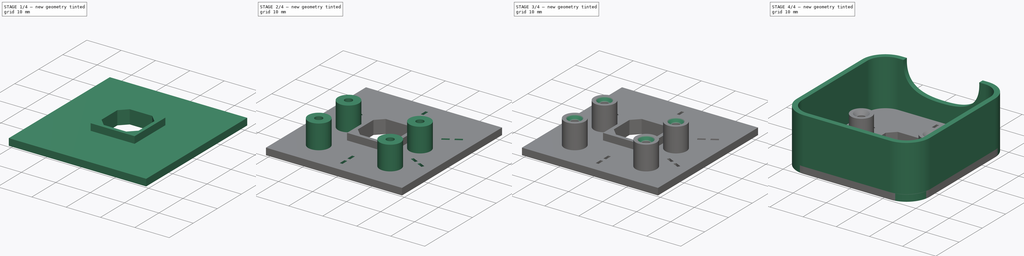
[diagram: build sequence overview — one tinted view per stage of 4, left to right]
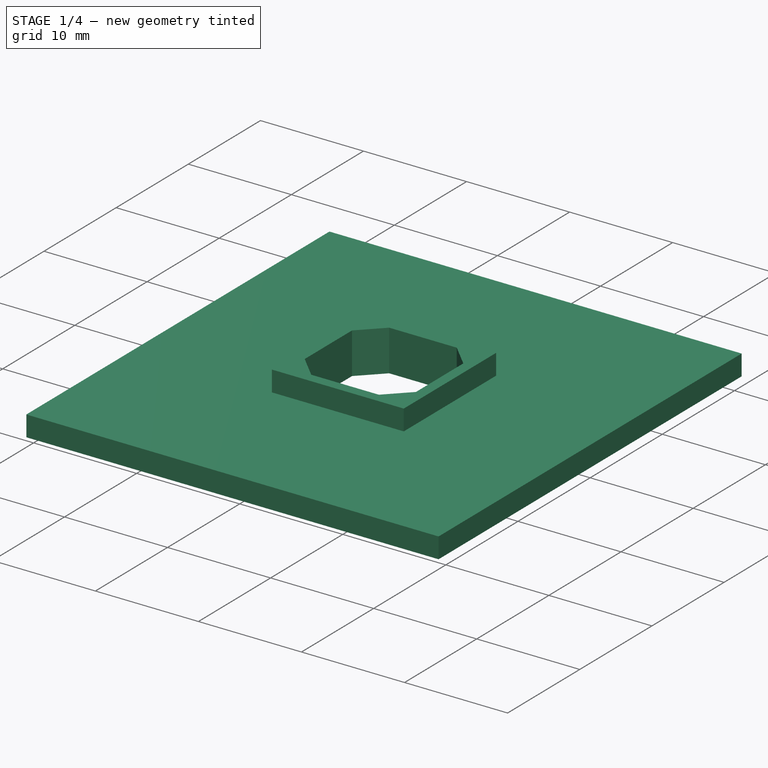
[diagram: stage 1 of 4 — iso view after this stage's code; geometry added in this stage tinted green]
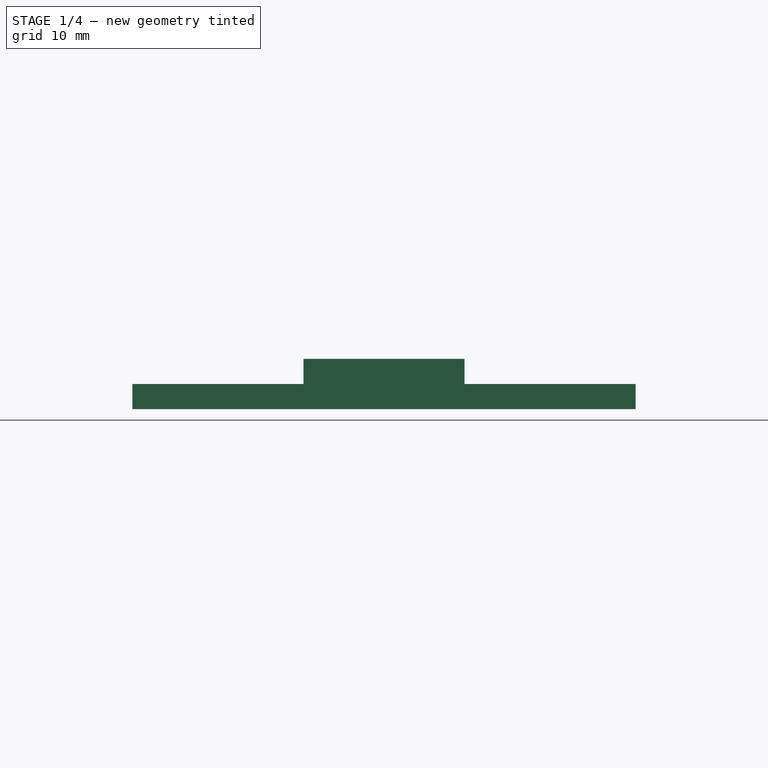
[diagram: stage 1 of 4 — front view after this stage's code; geometry added in this stage tinted green]
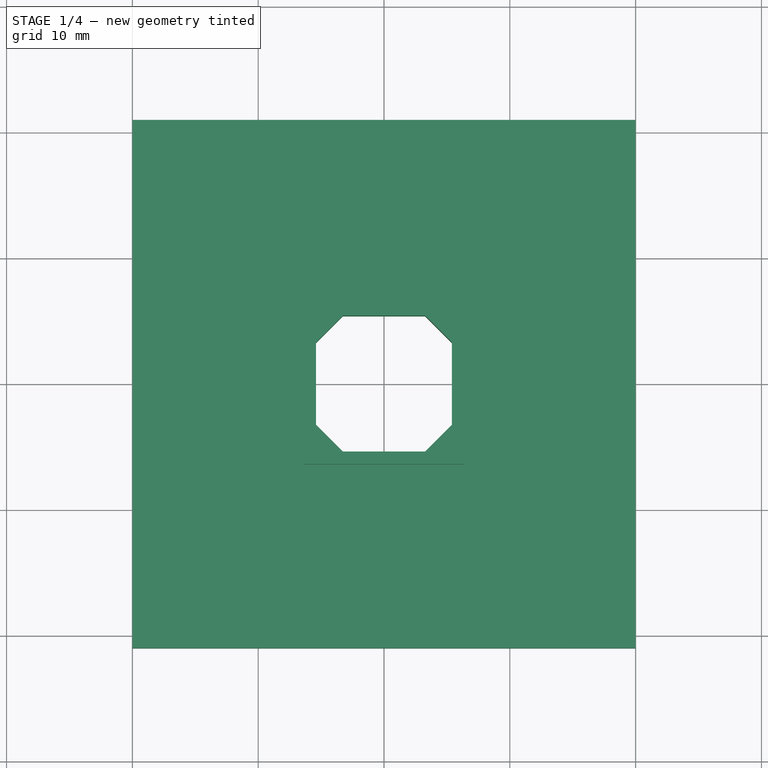
[diagram: stage 1 of 4 — top view after this stage's code; geometry added in this stage tinted green]
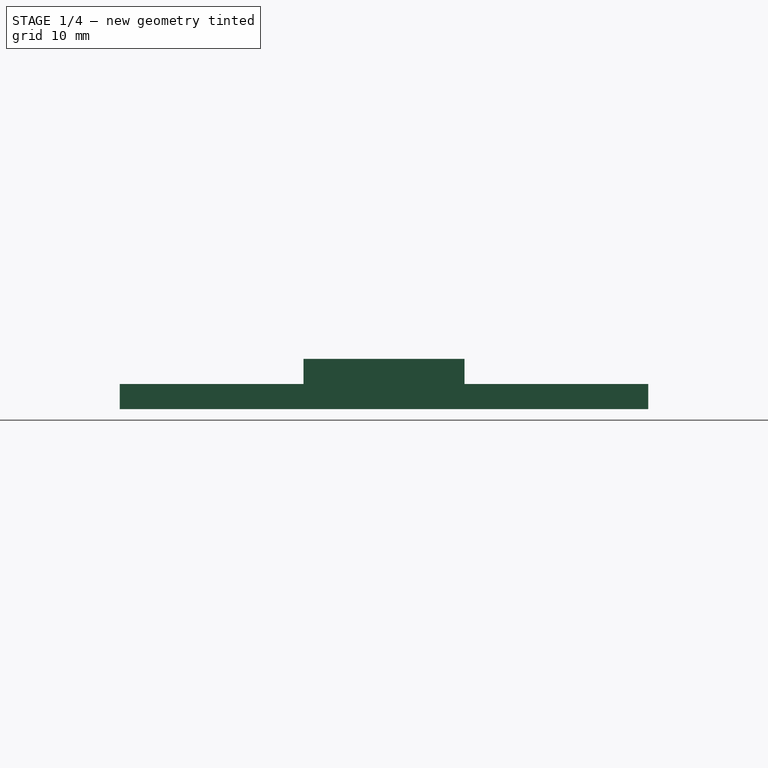
[diagram: stage 1 of 4 — right view after this stage's code; geometry added in this stage tinted green]
FCSTD DOCUMENT  (FreeCAD 2024.1R35694 (Git))
Label: probe-cam2
License: All rights reserved
LicenseURL: https://en.wikipedia.org/wiki/All_rights_reserved
objects: Sketcher::SketchObject×8, PartDesign::Pad×4, PartDesign::Pocket×4, PartDesign::Chamfer×2, Spreadsheet::Sheet×1, PartDesign::Fillet×1, PartDesign::Body×1
note: 31 computed .brp shape members not serialized (recipe doc carries the construction recipe); baked Part::Feature solids carry a one-line shape summary decoded from their .brp

FEATURE [Sketcher::SketchObject] Sketch
  FullyConstrained = true
  MapMode = 5
  Support = -> [XY_Plane]
  sketch-geometry (5):
    g0: LineSegment StartX=-5.4 StartY=5.4 StartZ=0 EndX=-5.4 EndY=-5.4 EndZ=0
    g1: LineSegment StartX=-5.4 StartY=-5.4 StartZ=0 EndX=5.4 EndY=-5.4 EndZ=0
    g2: LineSegment StartX=5.4 StartY=-5.4 StartZ=0 EndX=5.4 EndY=5.4 EndZ=0
    g3: LineSegment StartX=5.4 StartY=5.4 StartZ=0 EndX=-5.4 EndY=5.4 EndZ=0
    g4: GeomPoint X=0 Y=0 Z=0
  constraints (12):
    c: Coincident(g0,g1)
    c: Coincident(g1,g2)
    c: Coincident(g2,g3)
    c: Coincident(g3,g0)
    c: Vertical(g0)
    c: Vertical(g2)
    c: Horizontal(g1)
    c: Horizontal(g3)
    c: Symmetric(g2,g0,g4)
    c: Coincident(g4,g-1)
    c: Equal(g3,g0)
    c: DistanceX(g1,g1) = 10.8
FEATURE [Sketcher::SketchObject] Sketch001
  FullyConstrained = true
  MapMode = 5
  Support = -> [XY_Plane]
  sketch-geometry (8):
    g0: Circle CenterX=10.5 CenterY=-12.4 CenterZ=0 NormalX=0 NormalY=0 NormalZ=1 AngleXU=0 Radius=1.1
    g1: Circle CenterX=-10.5 CenterY=-12.4 CenterZ=0 NormalX=0 NormalY=0 NormalZ=1 AngleXU=0 Radius=1.1
    g2: Circle CenterX=10.5 CenterY=0.1 CenterZ=0 NormalX=0 NormalY=0 NormalZ=1 AngleXU=0 Radius=1.1
    g3: Circle CenterX=-10.5 CenterY=0.1 CenterZ=0 NormalX=0 NormalY=0 NormalZ=1 AngleXU=0 Radius=1.1
    g4: Circle CenterX=-10.5 CenterY=0.1 CenterZ=0 NormalX=0 NormalY=0 NormalZ=1 AngleXU=0 Radius=3.1
    g5: Circle CenterX=10.5 CenterY=0.1 CenterZ=0 NormalX=0 NormalY=0 NormalZ=1 AngleXU=0 Radius=3.1
    g6: Circle CenterX=10.5 CenterY=-12.4 CenterZ=0 NormalX=0 NormalY=0 NormalZ=1 AngleXU=0 Radius=3.1
    g7: Circle CenterX=-10.5 CenterY=-12.4 CenterZ=0 NormalX=0 NormalY=0 NormalZ=1 AngleXU=0 Radius=3.1
  constraints (19):
    c: Diameter(g0) = 2.2
    c: Equal(g0,g2)
    c: Equal(g2,g3)
    c: Equal(g3,g1)
    c: Vertical(g2,g0)
    c: Vertical(g1,g3)
    c: Horizontal(g1,g0)
    c: DistanceY(g-1,g2) = 0.1
    c: DistanceX(g1,g0) = 21
    c: DistanceY(g0,g2) = 12.5
    c: Symmetric(g3,g2,g-2)
    c: Coincident(g4,g3)
    c: Distance(g4,g3) = 2
    c: Coincident(g5,g2)
    c: Coincident(g6,g0)
    c: Coincident(g7,g1)
    c: Equal(g4,g7)
    c: Equal(g5,g4)
    c: Equal(g6,g5)
FEATURE [Spreadsheet::Sheet] Spreadsheet
  cells = C16='LED; C17='outer diameter; D17(led_outer_diameter)=5.8
FEATURE [Sketcher::SketchObject] Sketch002
  FullyConstrained = false
  MapMode = 5
  Support = -> [XY_Plane]
  expr: Constraints[0] = <<Spreadsheet>>.led_outer_diameter
  sketch-geometry (7):
    g0: Circle CenterX=0 CenterY=-15.3989 CenterZ=0 NormalX=0 NormalY=0 NormalZ=1 AngleXU=0 Radius=2.9
    g1: Circle CenterX=14.7692 CenterY=-7 CenterZ=0 NormalX=0 NormalY=0 NormalZ=1 AngleXU=0 Radius=2.9
    g2: Circle CenterX=-14 CenterY=8.6302 CenterZ=0 NormalX=0 NormalY=0 NormalZ=1 AngleXU=0 Radius=2.9
    g3: Circle CenterX=0 CenterY=15.3989 CenterZ=0 NormalX=0 NormalY=0 NormalZ=1 AngleXU=0 Radius=2.9
    g4: Circle CenterX=14 CenterY=8.6302 CenterZ=0 NormalX=0 NormalY=0 NormalZ=1 AngleXU=0 Radius=2.9
    g5: Circle CenterX=-14.7692 CenterY=-7 CenterZ=0 NormalX=0 NormalY=0 NormalZ=1 AngleXU=0 Radius=2.9
    g6: GeomPoint X=0 Y=0 Z=0
  constraints (11):
    c: Diameter(g0) = 5.8
    c: PointOnObject(g3,g-2)
    c: Equal(g0,g5)
    c: Equal(g0,g1)
    c: Equal(g0,g4)
    c: Equal(g0,g3)
    c: Equal(g0,g2)
    c: Symmetric(g5,g1,g-2)
    c: Symmetric(g2,g4,g-2)
    c: Symmetric(g0,g3,g-1)
    c: Coincident(g6,g-1)
FEATURE [Sketcher::SketchObject] Sketch003
  FullyConstrained = true
  MapMode = 5
  Support = -> [XY_Plane]
  sketch-geometry (5):
    g0: LineSegment StartX=20 StartY=-21 StartZ=0 EndX=20 EndY=21 EndZ=0
    g1: LineSegment StartX=20 StartY=21 StartZ=0 EndX=-20 EndY=21 EndZ=0
    g2: LineSegment StartX=-20 StartY=21 StartZ=0 EndX=-20 EndY=-21 EndZ=0
    g3: LineSegment StartX=-20 StartY=-21 StartZ=0 EndX=20 EndY=-21 EndZ=0
    g4: GeomPoint X=0 Y=0 Z=0
  constraints (12):
    c: Coincident(g0,g1)
    c: Coincident(g1,g2)
    c: Coincident(g2,g3)
    c: Coincident(g3,g0)
    c: Vertical(g0)
    c: Vertical(g2)
    c: Horizontal(g1)
    c: Horizontal(g3)
    c: Symmetric(g2,g0,g4)
    c: Coincident(g4,g-1)
    c: DistanceY(g2,g2) = 42
    c: DistanceX(g1,g1) = 40
FEATURE [Sketcher::SketchObject] Sketch004
  ExternalGeometry = -> [Sketch]
  FullyConstrained = true
  MapMode = 5
  Support = -> [XY_Plane]
  sketch-geometry (13):
    g0: LineSegment StartX=-5.4 StartY=3.27868 StartZ=0 EndX=-3.27868 EndY=5.4 EndZ=0
    g1: LineSegment StartX=3.27868 StartY=5.4 StartZ=0 EndX=5.4 EndY=3.27868 EndZ=0
    g2: LineSegment StartX=5.4 StartY=-3.27868 StartZ=0 EndX=3.27868 EndY=-5.4 EndZ=0
    g3: LineSegment StartX=-3.27868 StartY=-5.4 StartZ=0 EndX=-5.4 EndY=-3.27868 EndZ=0
    g4: LineSegment StartX=6.4 StartY=-6.4 StartZ=0 EndX=6.4 EndY=6.4 EndZ=0
    g5: LineSegment StartX=6.4 StartY=6.4 StartZ=0 EndX=-6.4 EndY=6.4 EndZ=0
    g6: LineSegment StartX=-6.4 StartY=6.4 StartZ=0 EndX=-6.4 EndY=-6.4 EndZ=0
    g7: LineSegment StartX=-6.4 StartY=-6.4 StartZ=0 EndX=6.4 EndY=-6.4 EndZ=0
    g8: GeomPoint X=0 Y=0 Z=0
    g9: LineSegment StartX=-3.27868 StartY=-5.4 StartZ=0 EndX=3.27868 EndY=-5.4 EndZ=0
    g10: LineSegment StartX=5.4 StartY=-3.27868 StartZ=0 EndX=5.4 EndY=3.27868 EndZ=0
    g11: LineSegment StartX=-3.27868 StartY=5.4 StartZ=0 EndX=3.27868 EndY=5.4 EndZ=0
    g12: LineSegment StartX=-5.4 StartY=-3.27868 StartZ=0 EndX=-5.4 EndY=3.27868 EndZ=0
  constraints (36):
    c: PointOnObject(g0,g-3)
    c: PointOnObject(g0,g-4)
    c: PointOnObject(g1,g-4)
    c: PointOnObject(g1,g-5)
    c: PointOnObject(g2,g-5)
    c: PointOnObject(g2,g-6)
    c: PointOnObject(g3,g-6)
    c: PointOnObject(g3,g-3)
    c: Angle(g0,g-2) = 0.785398
    c: Angle(g-2,g1) = 0.785398
    c: Angle(g2,g-2) = 0.785398
    c: Angle(g-2,g3) = 0.785398
    c: Distance(g3,g3) = 3
    c: Distance(g2,g2) = 3
    c: Distance(g1,g1) = 3
    c: Distance(g0,g0) = 3
    c: Coincident(g4,g5)
    c: Coincident(g5,g6)
    c: Coincident(g6,g7)
    c: Coincident(g7,g4)
    c: Vertical(g4)
    c: Vertical(g6)
    c: Horizontal(g5)
    c: Horizontal(g7)
    c: Symmetric(g6,g4,g8)
    c: Coincident(g8,g-1)
    c: Equal(g6,g5)
    c: Distance(g-3,g6) = 1
    c: Coincident(g9,g3)
    c: Coincident(g9,g2)
    c: Coincident(g10,g2)
    c: Coincident(g10,g1)
    c: Coincident(g11,g0)
    c: Coincident(g11,g1)
    c: Coincident(g12,g3)
    c: Coincident(g12,g0)
FEATURE [PartDesign::Pad] Pad
  Direction = (0,0,1)
  Length = 2
  Length2 = 10
  Profile = -> Sketch003
  ReferenceAxis = -> Sketch003 [N_Axis]
  Refine = true
  Type = 0
FEATURE [PartDesign::Pocket] Pocket
  BaseFeature = -> Pad
  Direction = (0,0,-1)
  Length = 5
  Length2 = 5
  Profile = -> Sketch
  ReferenceAxis = -> Sketch [N_Axis]
  Refine = true
  Reversed = true
  Type = 2
FEATURE [PartDesign::Pad] Pad001
  BaseFeature = -> Pocket
  Direction = (0,0,1)
  Length = 4
  Length2 = 10
  Profile = -> Sketch004
  ReferenceAxis = -> Sketch004 [N_Axis]
  Refine = true
  Type = 0
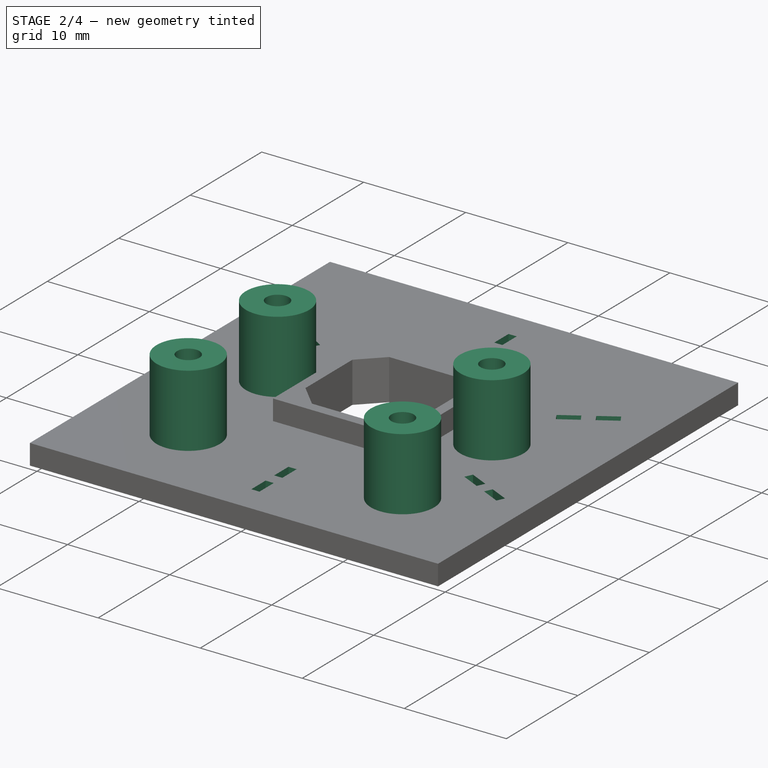
[diagram: stage 2 of 4 — iso view after this stage's code; geometry added in this stage tinted green]
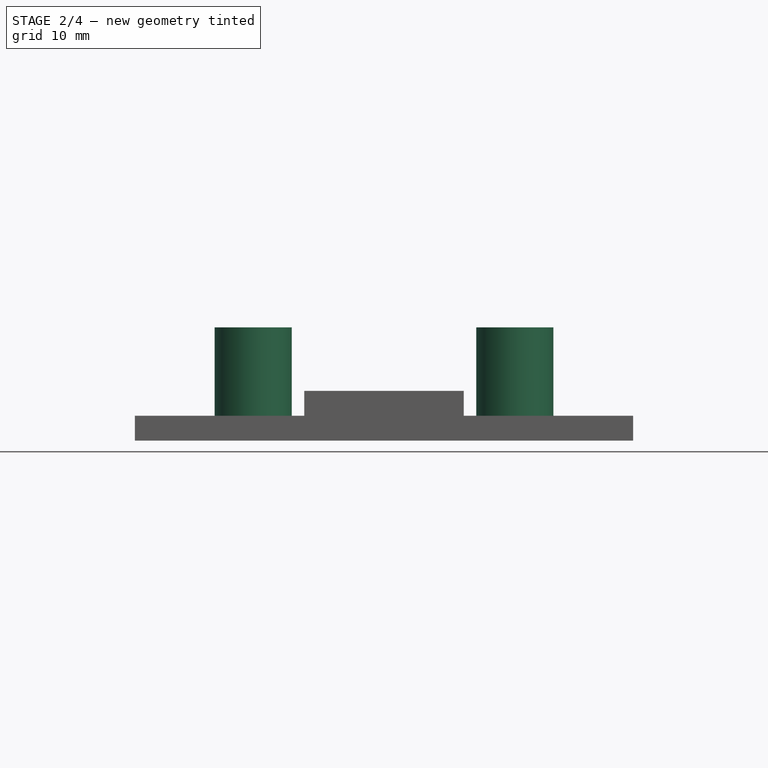
[diagram: stage 2 of 4 — front view after this stage's code; geometry added in this stage tinted green]
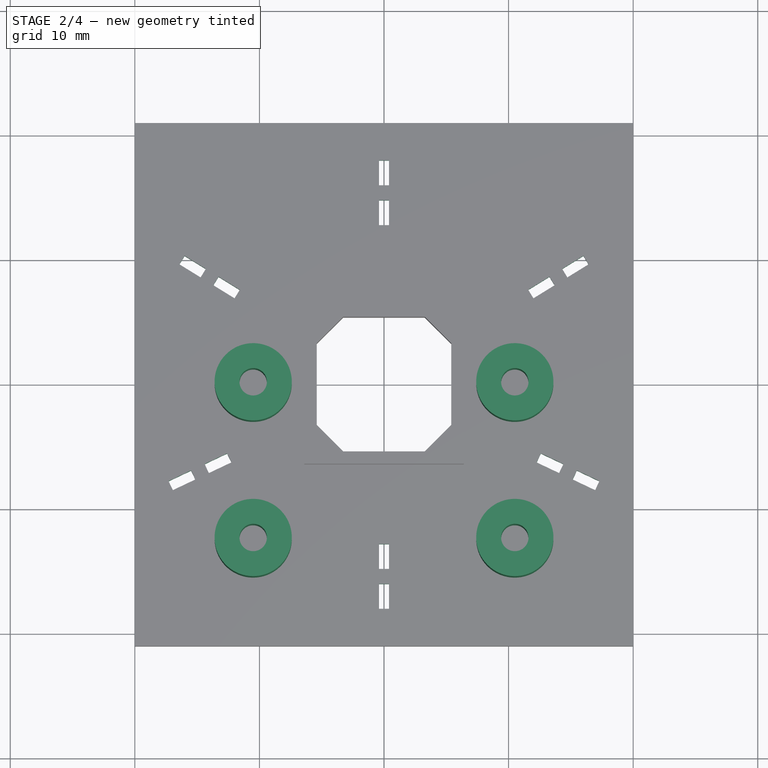
[diagram: stage 2 of 4 — top view after this stage's code; geometry added in this stage tinted green]
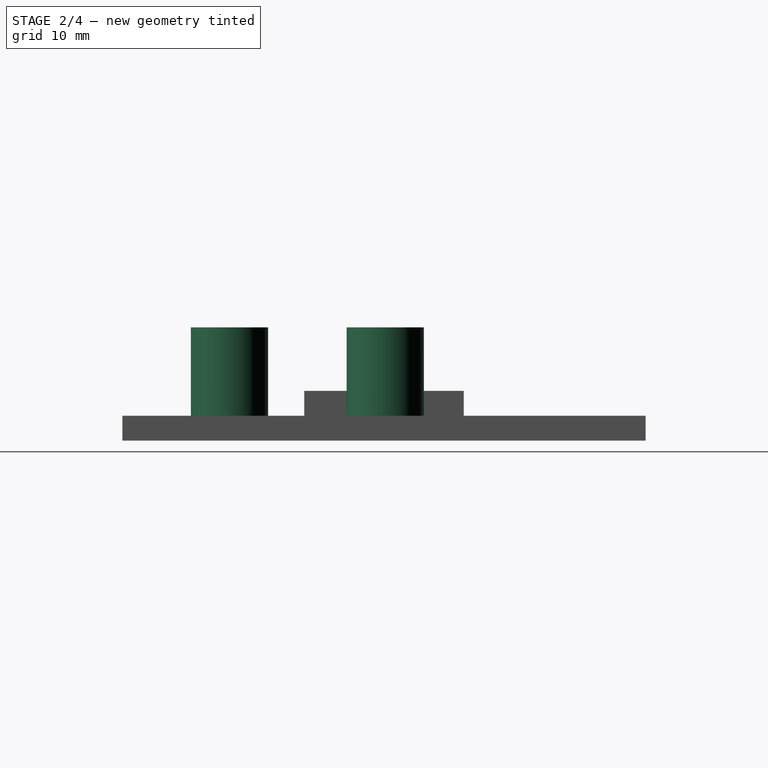
[diagram: stage 2 of 4 — right view after this stage's code; geometry added in this stage tinted green]
FEATURE [Sketcher::SketchObject] Sketch005
  ExternalGeometry = -> [Sketch002]
  FullyConstrained = true
  MapMode = 5
  Support = -> [XY_Plane]
  sketch-geometry (54):
    g0: LineSegment StartX=0 StartY=0 StartZ=0 EndX=-14 EndY=8.6302 EndZ=0
    g1: LineSegment StartX=0 StartY=0 StartZ=0 EndX=0 EndY=15.3989 EndZ=0
    g2: LineSegment StartX=0 StartY=0 StartZ=0 EndX=14 EndY=8.6302 EndZ=0
    g3: LineSegment StartX=0 StartY=0 StartZ=0 EndX=14.7692 EndY=-7 EndZ=0
    g4: LineSegment StartX=0 StartY=-15.3989 StartZ=0 EndX=0 EndY=0 EndZ=0
    g5: LineSegment StartX=-14.7692 StartY=-7 StartZ=0 EndX=0 EndY=0 EndZ=0
    g6: LineSegment StartX=-0.4 StartY=17.9989 StartZ=0 EndX=-0.4 EndY=15.9989 EndZ=0
    g7: LineSegment StartX=-0.4 StartY=15.9989 StartZ=0 EndX=0.4 EndY=15.9989 EndZ=0
    g8: LineSegment StartX=0.4 StartY=15.9989 StartZ=0 EndX=0.4 EndY=17.9989 EndZ=0
    g9: LineSegment StartX=0.4 StartY=17.9989 StartZ=0 EndX=-0.4 EndY=17.9989 EndZ=0
    g10: LineSegment StartX=0.4 StartY=14.7989 StartZ=0 EndX=-0.4 EndY=14.7989 EndZ=0
    g11: LineSegment StartX=0.4 StartY=12.7989 StartZ=0 EndX=0.4 EndY=14.7989 EndZ=0
    g12: LineSegment StartX=-0.4 StartY=14.7989 StartZ=0 EndX=-0.4 EndY=12.7989 EndZ=0
    g13: LineSegment StartX=-0.4 StartY=12.7989 StartZ=0 EndX=0.4 EndY=12.7989 EndZ=0
    g14: LineSegment StartX=16.0034 StartY=10.335 StartZ=0 EndX=14.3009 EndY=9.28555 EndZ=0
    g15: LineSegment StartX=14.3009 StartY=9.28555 StartZ=0 EndX=14.7207 EndY=8.60454 EndZ=0
    g16: LineSegment StartX=14.7207 StartY=8.60454 StartZ=0 EndX=16.4232 EndY=9.65404 EndZ=0
    g17: LineSegment StartX=16.4232 StartY=9.65404 StartZ=0 EndX=16.0034 EndY=10.335 EndZ=0
    g18: LineSegment StartX=13.6991 StartY=7.97484 StartZ=0 EndX=13.2793 EndY=8.65585 EndZ=0
    g19: LineSegment StartX=11.9966 StartY=6.92534 StartZ=0 EndX=13.6991 EndY=7.97484 EndZ=0
    g20: LineSegment StartX=13.2793 StartY=8.65585 StartZ=0 EndX=11.5768 EndY=7.60635 EndZ=0
    g21: LineSegment StartX=11.5768 StartY=7.60635 StartZ=0 EndX=11.9966 EndY=6.92534 EndZ=0
    g22: LineSegment StartX=17.29 StartY=-7.7521 StartZ=0 EndX=15.4827 EndY=-6.89552 EndZ=0
    g23: LineSegment StartX=15.4827 StartY=-6.89552 StartZ=0 EndX=15.14 EndY=-7.61843 EndZ=0
    g24: LineSegment StartX=15.14 StartY=-7.61843 StartZ=0 EndX=16.9473 EndY=-8.47501 EndZ=0
    g25: LineSegment StartX=16.9473 StartY=-8.47501 StartZ=0 EndX=17.29 EndY=-7.7521 EndZ=0
    g26: LineSegment StartX=14.0557 StartY=-7.10448 StartZ=0 EndX=14.3983 EndY=-6.38157 EndZ=0
    g27: LineSegment StartX=12.2484 StartY=-6.2479 StartZ=0 EndX=14.0557 EndY=-7.10448 EndZ=0
    g28: LineSegment StartX=14.3983 StartY=-6.38157 StartZ=0 EndX=12.591 EndY=-5.52499 EndZ=0
    g29: LineSegment StartX=12.591 StartY=-5.52499 StartZ=0 EndX=12.2484 EndY=-6.2479 EndZ=0
    g30: LineSegment StartX=0.4 StartY=-17.9989 StartZ=0 EndX=0.4 EndY=-15.9989 EndZ=0
    g31: LineSegment StartX=0.4 StartY=-15.9989 StartZ=0 EndX=-0.4 EndY=-15.9989 EndZ=0
    g32: LineSegment StartX=-0.4 StartY=-15.9989 StartZ=0 EndX=-0.4 EndY=-17.9989 EndZ=0
    g33: LineSegment StartX=-0.4 StartY=-17.9989 StartZ=0 EndX=0.4 EndY=-17.9989 EndZ=0
    g34: LineSegment StartX=-0.4 StartY=-14.7989 StartZ=0 EndX=0.4 EndY=-14.7989 EndZ=0
    g35: LineSegment StartX=-0.4 StartY=-12.7989 StartZ=0 EndX=-0.4 EndY=-14.7989 EndZ=0
    g36: LineSegment StartX=0.4 StartY=-14.7989 StartZ=0 EndX=0.4 EndY=-12.7989 EndZ=0
    g37: LineSegment StartX=0.4 StartY=-12.7989 StartZ=0 EndX=-0.4 EndY=-12.7989 EndZ=0
    g38: LineSegment StartX=-16.9473 StartY=-8.47501 StartZ=0 EndX=-15.14 EndY=-7.61843 EndZ=0
    g39: LineSegment StartX=-15.14 StartY=-7.61843 StartZ=0 EndX=-15.4827 EndY=-6.89552 EndZ=0
    g40: LineSegment StartX=-15.4827 StartY=-6.89552 StartZ=0 EndX=-17.29 EndY=-7.7521 EndZ=0
    g41: LineSegment StartX=-17.29 StartY=-7.7521 StartZ=0 EndX=-16.9473 EndY=-8.47501 EndZ=0
    g42: LineSegment StartX=-14.3983 StartY=-6.38157 StartZ=0 EndX=-14.0557 EndY=-7.10448 EndZ=0
    g43: LineSegment StartX=-12.591 StartY=-5.52499 StartZ=0 EndX=-14.3983 EndY=-6.38157 EndZ=0
    g44: LineSegment StartX=-14.0557 StartY=-7.10448 StartZ=0 EndX=-12.2484 EndY=-6.2479 EndZ=0
    g45: LineSegment StartX=-12.2484 StartY=-6.2479 StartZ=0 EndX=-12.591 EndY=-5.52499 EndZ=0
    g46: LineSegment StartX=-16.4232 StartY=9.65404 StartZ=0 EndX=-14.7207 EndY=8.60454 EndZ=0
    g47: LineSegment StartX=-14.7207 StartY=8.60454 StartZ=0 EndX=-14.3009 EndY=9.28555 EndZ=0
    g48: LineSegment StartX=-14.3009 StartY=9.28555 StartZ=0 EndX=-16.0034 EndY=10.335 EndZ=0
    g49: LineSegment StartX=-16.0034 StartY=10.335 StartZ=0 EndX=-16.4232 EndY=9.65404 EndZ=0
    g50: LineSegment StartX=-13.2793 StartY=8.65585 StartZ=0 EndX=-13.6991 EndY=7.97484 EndZ=0
    g51: LineSegment StartX=-11.5768 StartY=7.60635 StartZ=0 EndX=-13.2793 EndY=8.65585 EndZ=0
    g52: LineSegment StartX=-13.6991 StartY=7.97484 StartZ=0 EndX=-11.9966 EndY=6.92534 EndZ=0
    g53: LineSegment StartX=-11.9966 StartY=6.92534 StartZ=0 EndX=-11.5768 EndY=7.60635 EndZ=0
  constraints (143):
    c: Coincident(g0,g-1)
    c: Coincident(g0,g-3)
    c: Coincident(g1,g0)
    c: Coincident(g1,g-4)
    c: Coincident(g2,g0)
    c: Coincident(g2,g-5)
    c: Coincident(g3,g0)
    c: Coincident(g3,g-6)
    c: Coincident(g4,g-7)
    c: Coincident(g4,g0)
    c: Coincident(g5,g-8)
    c: Coincident(g5,g0)
    c: Coincident(g6,g7)
    c: Coincident(g7,g8)
    c: Coincident(g8,g9)
    c: Coincident(g9,g6)
    c: Symmetric(g6,g7,g-2)
    c: DistanceX(g9,g9) = 0.8
    c: Equal(g6,g8)
    c: Perpendicular(g9,g8)
    c: Perpendicular(g6,g9)
    c: DistanceY(g8,g8) = 2
    c: Coincident(g11,g10)
    c: Coincident(g10,g12)
    c: Coincident(g12,g13)
    c: Coincident(g13,g11)
    c: Equal(g11,g12)
    c: Perpendicular(g13,g12)
    c: Perpendicular(g11,g13)
    c: Coincident(g14,g15)
    c: Coincident(g22,g23)
    c: Coincident(g30,g31)
    c: Coincident(g38,g39)
    c: Coincident(g46,g47)
    c: Coincident(g15,g16)
    c: Coincident(g23,g24)
    c: Coincident(g31,g32)
    c: Coincident(g39,g40)
    c: Coincident(g47,g48)
    c: Coincident(g16,g17)
    c: Coincident(g24,g25)
    c: Coincident(g32,g33)
    c: Coincident(g40,g41)
    c: Coincident(g48,g49)
    c: Coincident(g17,g14)
    c: Coincident(g25,g22)
    c: Coincident(g33,g30)
    c: Coincident(g41,g38)
    c: Coincident(g49,g46)
    c: Equal(g9,g17)
    c: Equal(g9,g25)
    c: Equal(g9,g33)
    c: Equal(g9,g41)
    c: Equal(g9,g49)
    c: Equal(g14,g16)
    c: Equal(g22,g24)
    c: Equal(g30,g32)
    c: Equal(g38,g40)
    c: Equal(g46,g48)
    c: Perpendicular(g17,g16)
    c: Perpendicular(g25,g24)
    c: Perpendicular(g33,g32)
    c: Perpendicular(g41,g40)
    c: Perpendicular(g49,g48)
    c: Perpendicular(g14,g17)
    c: Perpendicular(g22,g25)
    c: Perpendicular(g30,g33)
    c: Perpendicular(g38,g41)
    c: Perpendicular(g46,g49)
    c: Equal(g8,g16)
    c: Equal(g8,g24)
    c: Equal(g8,g32)
    c: Equal(g8,g40)
    c: Equal(g8,g48)
    c: Coincident(g19,g18)
    c: Coincident(g27,g26)
    c: Coincident(g35,g34)
    c: Coincident(g43,g42)
    c: Coincident(g51,g50)
    c: Coincident(g18,g20)
    c: Coincident(g26,g28)
    c: Coincident(g34,g36)
    c: Coincident(g42,g44)
    c: Coincident(g50,g52)
    c: Coincident(g20,g21)
    c: Coincident(g28,g29)
    c: Coincident(g36,g37)
    c: Coincident(g44,g45)
    c: Coincident(g52,g53)
    c: Coincident(g21,g19)
    c: Coincident(g29,g27)
    c: Coincident(g37,g35)
    c: Coincident(g45,g43)
    c: Coincident(g53,g51)
    c: Equal(g19,g20)
    c: Equal(g27,g28)
    c: Equal(g35,g36)
    c: Equal(g43,g44)
    c: Equal(g51,g52)
    c: Perpendicular(g21,g20)
    c: Perpendicular(g29,g28)
    c: Perpendicular(g37,g36)
    c: Perpendicular(g45,g44)
    c: Perpendicular(g53,g52)
    c: Perpendicular(g19,g21)
    c: Perpendicular(g27,g29)
    c: Perpendicular(g35,g37)
    c: Perpendicular(g43,g45)
    c: Perpendicular(g51,g53)
    c: Distance(g1,g7) = 0.6
    c: Symmetric(g10,g7,g1)
    c: Equal(g19,g16)
    c: Parallel(g2,g19)
    c: Equal(g18,g15)
    c: Symmetric(g14,g15,g2)
    c: Symmetric(g18,g15,g2)
    c: Distance(g2,g15) = 0.6
    c: Parallel(g12,g1)
    c: Equal(g11,g8)
    c: Equal(g10,g7)
    c: Parallel(g28,g3)
    c: Equal(g28,g22)
    c: Equal(g23,g26)
    c: Distance(g3,g23) = 0.6
    c: Symmetric(g23,g22,g3)
    c: Symmetric(g22,g26,g3)
    c: Equal(g48,g51)
    c: Equal(g50,g47)
    c: Parallel(g0,g51)
    c: Distance(g0,g47) = 0.6
    c: Symmetric(g46,g47,g0)
    c: Symmetric(g50,g47,g0)
    c: Equal(g43,g40)
    c: Symmetric(g39,g38,g5)
    c: Symmetric(g42,g42,g5)
    c: Distance(g5,g39) = 0.6
    c: Symmetric(g42,g39,g5)
    c: Equal(g34,g31)
    c: Equal(g32,g35)
    c: Parallel(g35,g32)
    c: Symmetric(g31,g30,g-2)
    c: Symmetric(g31,g34,g4)
    c: Distance(g4,g31) = 0.6
FEATURE [PartDesign::Pad] Pad002
  BaseFeature = -> Pad001
  Direction = (0,0,1)
  Length = 9.1
  Length2 = 10
  Profile = -> Sketch001
  ReferenceAxis = -> Sketch001 [N_Axis]
  Refine = true
  Type = 0
FEATURE [PartDesign::Pocket] Pocket001
  BaseFeature = -> Pad002
  Direction = (0,0,-1)
  Length = 0
  Length2 = 5
  Profile = -> Sketch005
  ReferenceAxis = -> Sketch005 [N_Axis]
  Refine = true
  Type = 3
  UpToFace = -> Pad002 [Face4]
FEATURE [PartDesign::Pocket] Pocket002
  BaseFeature = -> Pocket001
  Direction = (0,0,-1)
  Length = 0.2
  Length2 = 5
  Profile = -> Sketch002
  ReferenceAxis = -> Sketch002 [N_Axis]
  Refine = true
  Reversed = true
  Type = 0
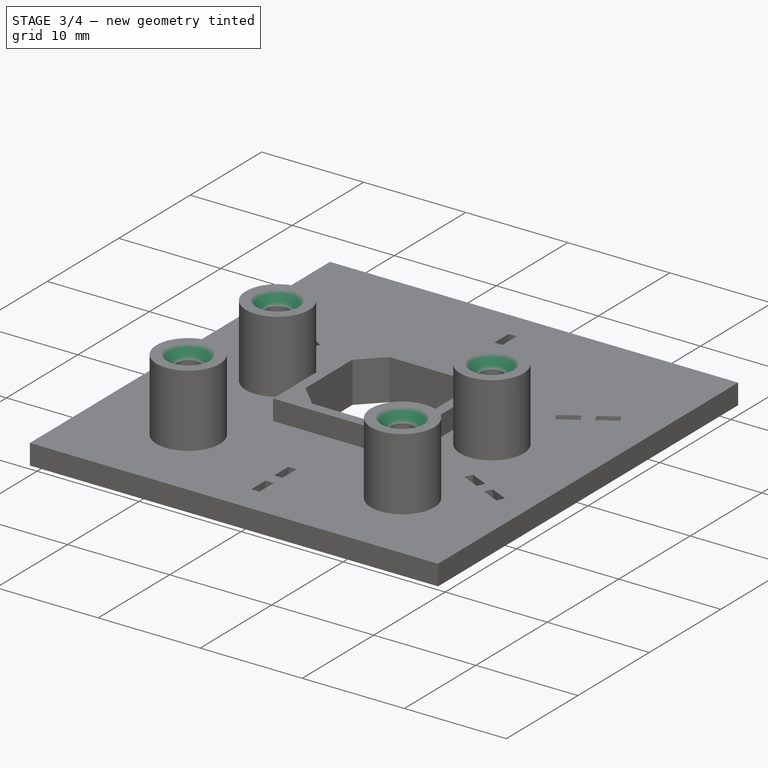
[diagram: stage 3 of 4 — iso view after this stage's code; geometry added in this stage tinted green]
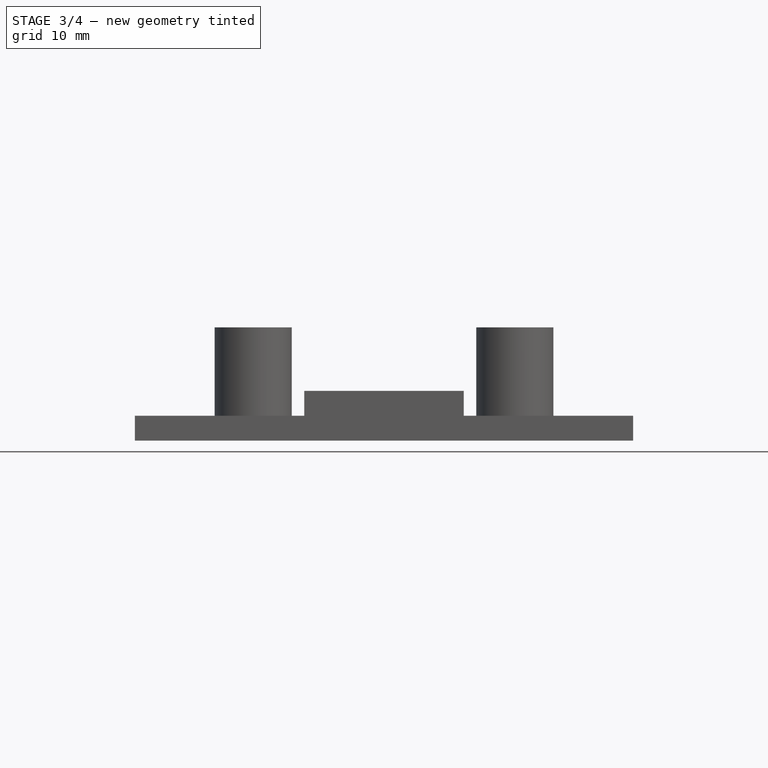
[diagram: stage 3 of 4 — front view after this stage's code; geometry added in this stage tinted green]
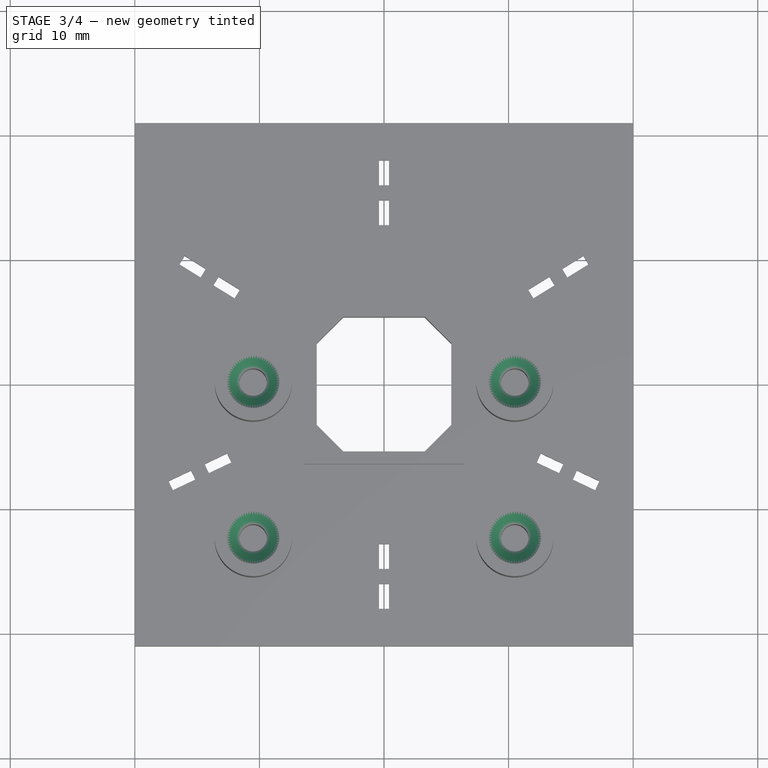
[diagram: stage 3 of 4 — top view after this stage's code; geometry added in this stage tinted green]
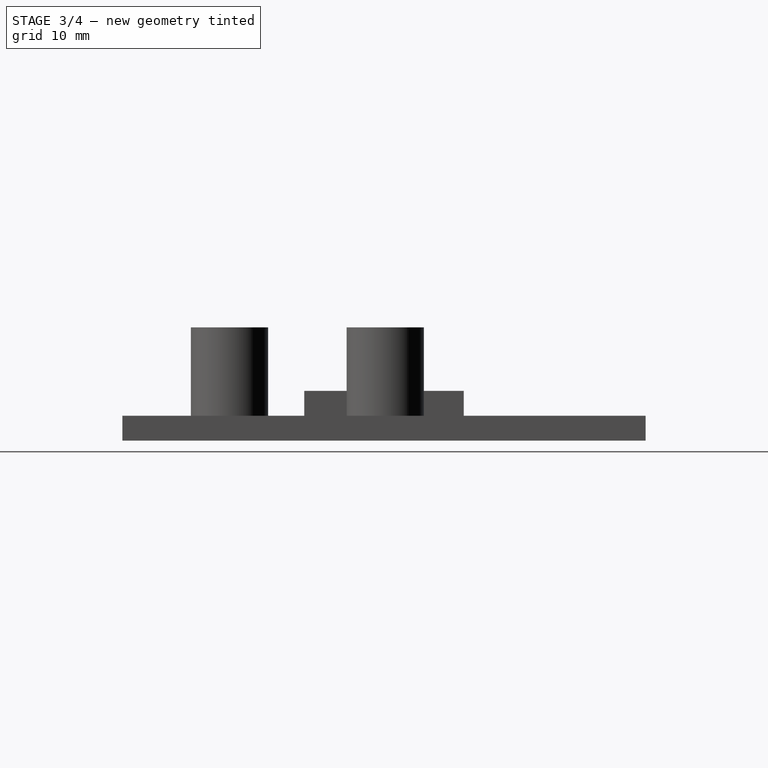
[diagram: stage 3 of 4 — right view after this stage's code; geometry added in this stage tinted green]
FEATURE [PartDesign::Chamfer] Chamfer
  Angle = 45
  Base = -> Pocket002 [Edge13,Edge12,Edge14,Edge24,Edge25,Edge15]
  BaseFeature = -> Pocket002
  ChamferType = 0
  FlipDirection = false
  Refine = true
  Size = 0.19
  Size2 = 1
  SupportTransform = false
  UseAllEdges = false
FEATURE [PartDesign::Chamfer] Chamfer001
  Angle = 45
  Base = -> Chamfer [Edge238,Edge236,Edge235,Edge237]
  BaseFeature = -> Chamfer
  ChamferType = 0
  FlipDirection = false
  Refine = true
  Size = 1
  Size2 = 1
  SupportTransform = false
  UseAllEdges = false
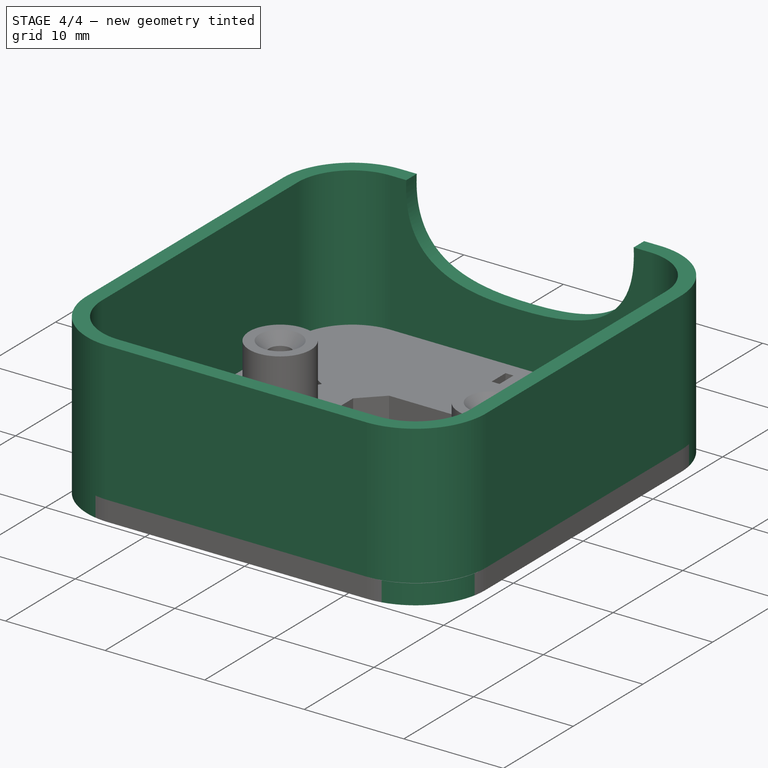
[diagram: stage 4 of 4 — iso view after this stage's code; geometry added in this stage tinted green]
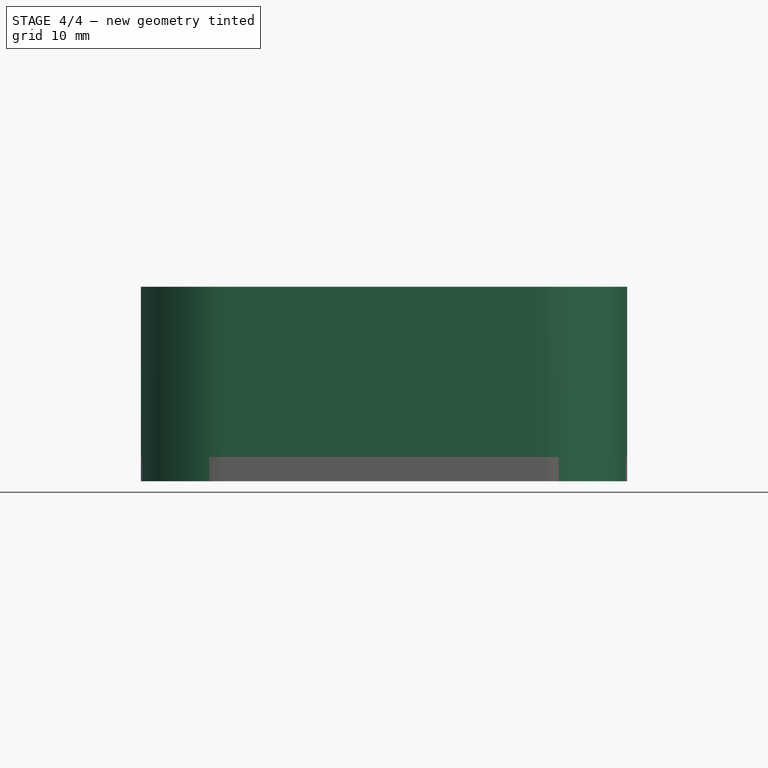
[diagram: stage 4 of 4 — front view after this stage's code; geometry added in this stage tinted green]
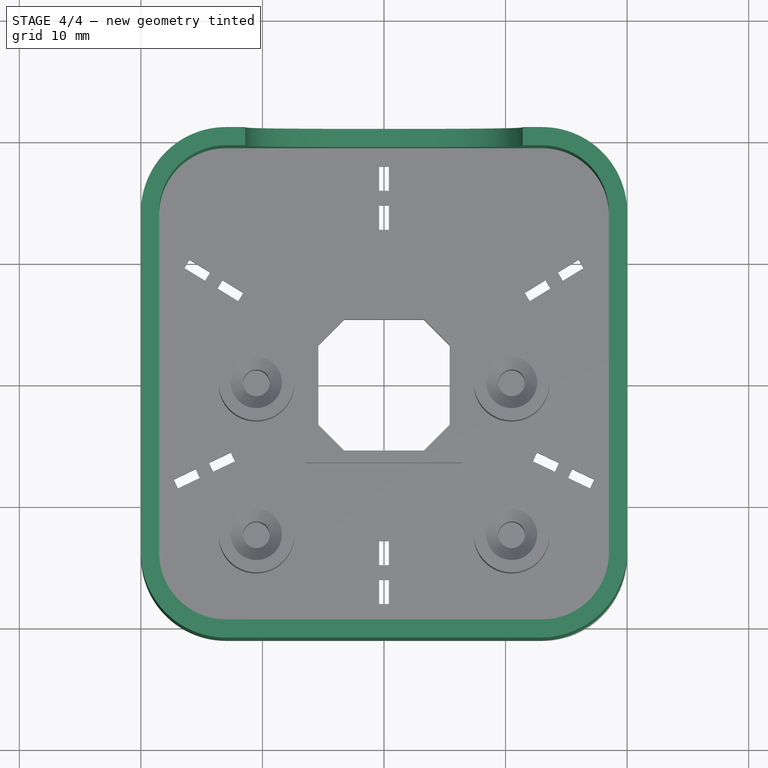
[diagram: stage 4 of 4 — top view after this stage's code; geometry added in this stage tinted green]
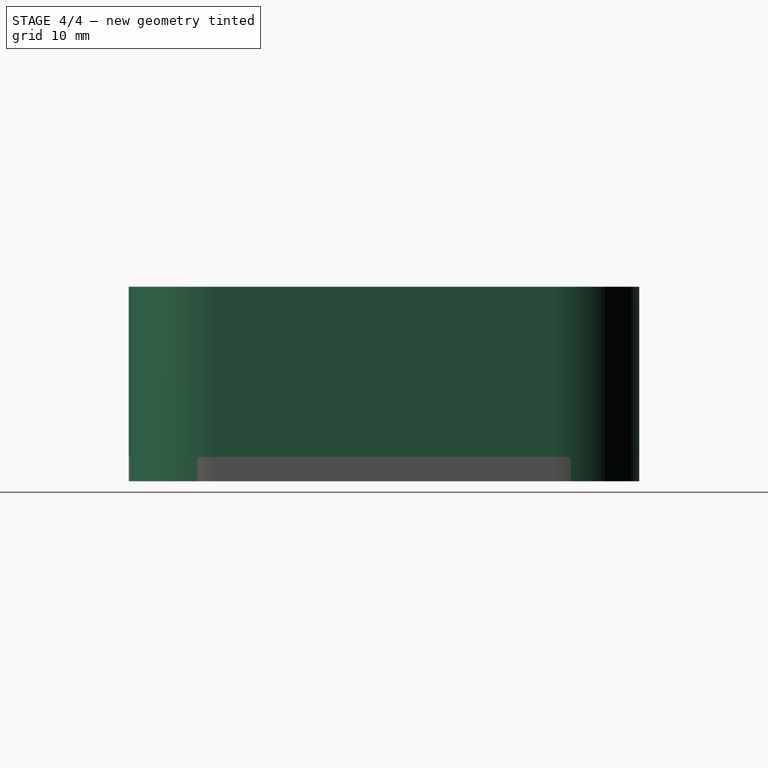
[diagram: stage 4 of 4 — right view after this stage's code; geometry added in this stage tinted green]
FEATURE [PartDesign::Fillet] Fillet
  Base = -> Chamfer001 [Edge71,Edge68,Edge73,Edge69]
  BaseFeature = -> Chamfer001
  Radius = 7
  Refine = true
  SupportTransform = false
  UseAllEdges = false
FEATURE [Sketcher::SketchObject] Sketch006
  ExternalGeometry = -> [Fillet]
  FullyConstrained = false
  MapMode = 5
  Placement = pos=(0,0,2) rot=(0,0,1;0rad)
  Support = -> [Fillet]
  sketch-geometry (18):
    g0: LineSegment StartX=-18.5 StartY=14 StartZ=0 EndX=-18.5 EndY=-13.9998 EndZ=0
    g1: LineSegment StartX=-13.0002 StartY=-19.5 StartZ=0 EndX=13 EndY=-19.5 EndZ=0
    g2: LineSegment StartX=18.5 StartY=-14 StartZ=0 EndX=18.5 EndY=14 EndZ=0
    g3: LineSegment StartX=13 StartY=19.5 StartZ=0 EndX=-13 EndY=19.5 EndZ=0
    g4: ArcOfCircle CenterX=-13 CenterY=14 CenterZ=0 NormalX=0 NormalY=0 NormalZ=1 AngleXU=0 Radius=5.5 StartAngle=1.5708 EndAngle=3.1416
    g5: ArcOfCircle CenterX=13 CenterY=14 CenterZ=0 NormalX=0 NormalY=0 NormalZ=1 AngleXU=0 Radius=5.5 StartAngle=6.28318 EndAngle=7.85398
    g6: ArcOfCircle CenterX=13 CenterY=-14 CenterZ=0 NormalX=0 NormalY=0 NormalZ=1 AngleXU=0 Radius=5.5 StartAngle=4.71239 EndAngle=6.28318
    g7: ArcOfCircle CenterX=-13 CenterY=-14 CenterZ=0 NormalX=0 NormalY=0 NormalZ=1 AngleXU=0 Radius=5.5 StartAngle=3.14156 EndAngle=4.71235
    g8: ArcOfCircle CenterX=-13 CenterY=-14 CenterZ=0 NormalX=0 NormalY=0 NormalZ=1 AngleXU=0 Radius=7 StartAngle=3.14159 EndAngle=4.71239
    g9: Circle CenterX=-13 CenterY=-19.5024 CenterZ=0 NormalX=0 NormalY=0 NormalZ=1 AngleXU=0 Radius=1.5
    g10: LineSegment StartX=-13 StartY=-21 StartZ=0 EndX=13 EndY=-21 EndZ=0
    g11: Circle CenterX=13 CenterY=-19.5024 CenterZ=0 NormalX=0 NormalY=0 NormalZ=1 AngleXU=0 Radius=1.5
    g12: ArcOfCircle CenterX=12.8556 CenterY=-13.8556 CenterZ=0 NormalX=0 NormalY=0 NormalZ=1 AngleXU=0 Radius=7.14583 StartAngle=4.73259 EndAngle=6.26298
    g13: LineSegment StartX=20 StartY=-14 StartZ=0 EndX=20 EndY=14 EndZ=0
    g14: ArcOfCircle CenterX=13 CenterY=14 CenterZ=0 NormalX=0 NormalY=0 NormalZ=1 AngleXU=0 Radius=7 StartAngle=1e-16 EndAngle=1.5708
    g15: LineSegment StartX=13 StartY=21 StartZ=0 EndX=-13 EndY=21 EndZ=0
    g16: ArcOfCircle CenterX=-13 CenterY=14 CenterZ=0 NormalX=0 NormalY=0 NormalZ=1 AngleXU=0 Radius=7 StartAngle=1.5708 EndAngle=3.14159
    g17: LineSegment StartX=-20 StartY=14 StartZ=0 EndX=-20 EndY=-14 EndZ=0
  constraints (36):
    c: Vertical(g0)
    c: Horizontal(g1)
    c: Vertical(g2)
    c: Horizontal(g3)
    c: Coincident(g4,g-3)
    c: Coincident(g4,g0)
    c: Coincident(g4,g3)
    c: Coincident(g5,g-5)
    c: Coincident(g5,g3)
    c: Coincident(g5,g2)
    c: Coincident(g6,g-7)
    c: Coincident(g6,g2)
    c: Coincident(g6,g1)
    c: Coincident(g7,g-9)
    c: Coincident(g7,g1)
    c: Coincident(g7,g0)
    c: Distance(g0,g-10) = 1.5
    c: Coincident(g8,g17)
    c: Coincident(g10,g12)
    c: Coincident(g12,g13)
    c: Coincident(g13,g14)
    c: Tangent(g14,g15) = -1.5708
    c: Tangent(g15,g16) = -1.5708
    c: Tangent(g16,g17) = -1.5708
    c: Coincident(g10,g8)
    c: Coincident(g8,g-9)
    c: Coincident(g10,g-8)
    c: Coincident(g12,g-7)
    c: Coincident(g13,g-6)
    c: Coincident(g14,g-5)
    c: Coincident(g16,g-10)
    c: Coincident(g16,g4)
    c: Coincident(g7,g8)
    c: Distance(g13,g2) = 1.5
    c: Distance(g10,g1) = 1.5
    c: Distance(g15,g3) = 1.5
FEATURE [PartDesign::Pad] Pad003
  BaseFeature = -> Fillet
  Direction = (0,0,1)
  Length = 14
  Length2 = 10
  Profile = -> Sketch006
  ReferenceAxis = -> Sketch006 [N_Axis]
  Refine = true
  Type = 0
FEATURE [Sketcher::SketchObject] Sketch007
  ExternalGeometry = -> [Pad003]
  FullyConstrained = false
  MapMode = 5
  Placement = pos=(0,21,0) rot=(0,0.707107,0.707107;3.14159rad)
  Support = -> [Pad003]
  sketch-geometry (10):
    g0-g4: Circle x5 (B-spline internal-alignment scaffolding for g5; pole/knot coordinates omitted)
    g5: BSplineCurve PolesCount=5 KnotsCount=3 Degree=3 IsPeriodic=0
    g6: GeomPoint X=-11.4178 Y=16 Z=0
    g7: GeomPoint X=0 Y=7.28258 Z=0
    g8: GeomPoint X=11.4178 Y=16 Z=0
    g9: LineSegment StartX=-11.4178 StartY=16 StartZ=0 EndX=11.4178 EndY=16 EndZ=0
  constraints (12):
    c: Weight(g0) = 1
    c: Equal(g0, g1-g4) x4
    c: InternalAlignment(g0-g4 -> g5) x5
    c: InternalAlignment(g6,g5)
    c: InternalAlignment(g7,g5)
    c: InternalAlignment(g8,g5)
    c: PointOnObject(g2,g-2)
    c: Symmetric(g1,g3,g-2)
    c: Symmetric(g5,g5,g-2)
    c: Coincident(g9,g5)
    c: Coincident(g9,g5)
    c: PointOnObject(g5,g-3)
FEATURE [PartDesign::Pocket] Pocket003
  BaseFeature = -> Pad003
  Direction = (0,-1,2e-16)
  Length = 5
  Length2 = 5
  Profile = -> Sketch007
  ReferenceAxis = -> Sketch007 [N_Axis]
  Refine = true
  Type = 2
FEATURE [PartDesign::Body] Body
  Group = -> [Sketch,Sketch001,Sketch002,Sketch003,Sketch004,Pad,Pocket,Pad001,Sketch005,Pad002,Pocket001,Pocket002,Chamfer,Chamfer001,Fillet,Sketch006,Pad003,Sketch007,Pocket003]
  Origin = -> Origin
  Tip = -> Pocket003
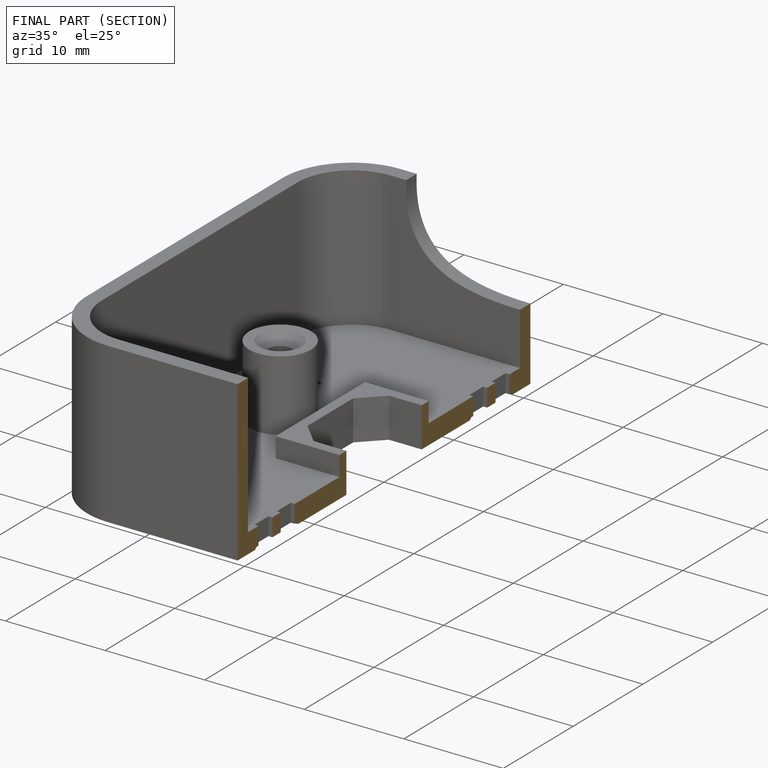
[diagram: finished part — half-section view (interior)]
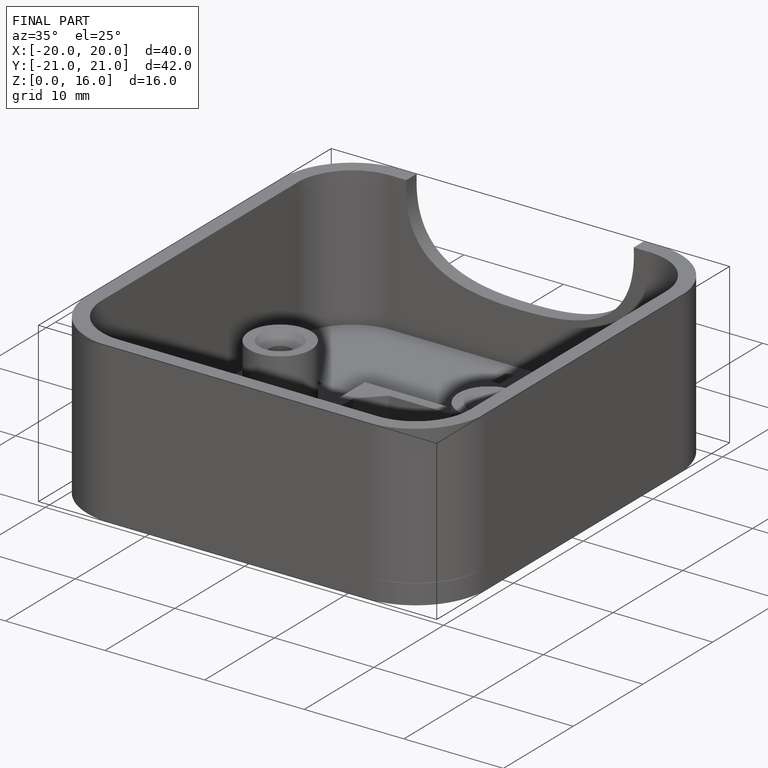
[diagram: finished part — iso view with bounding-box wireframe]
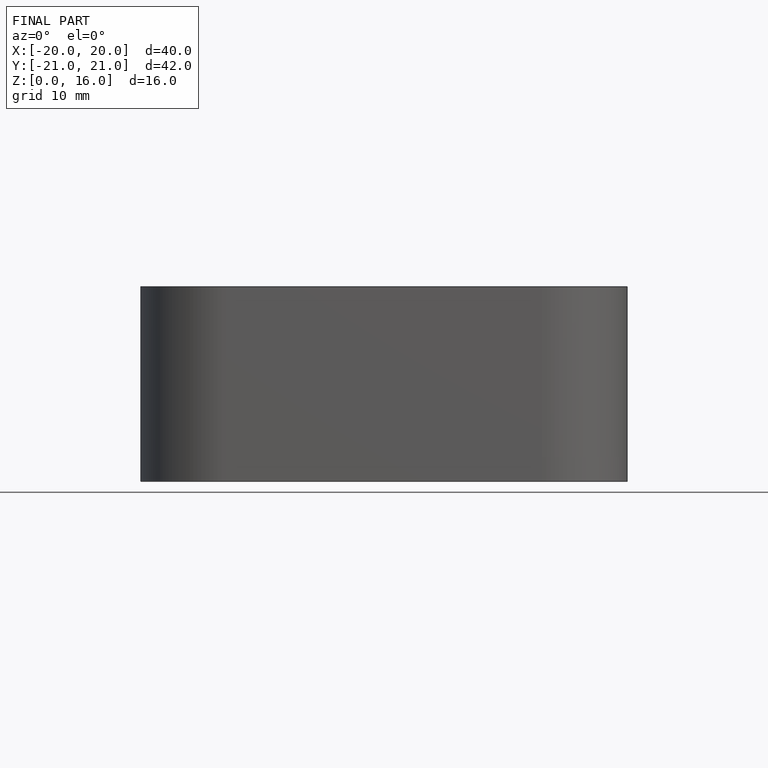
[diagram: finished part — front view with bounding-box wireframe]
